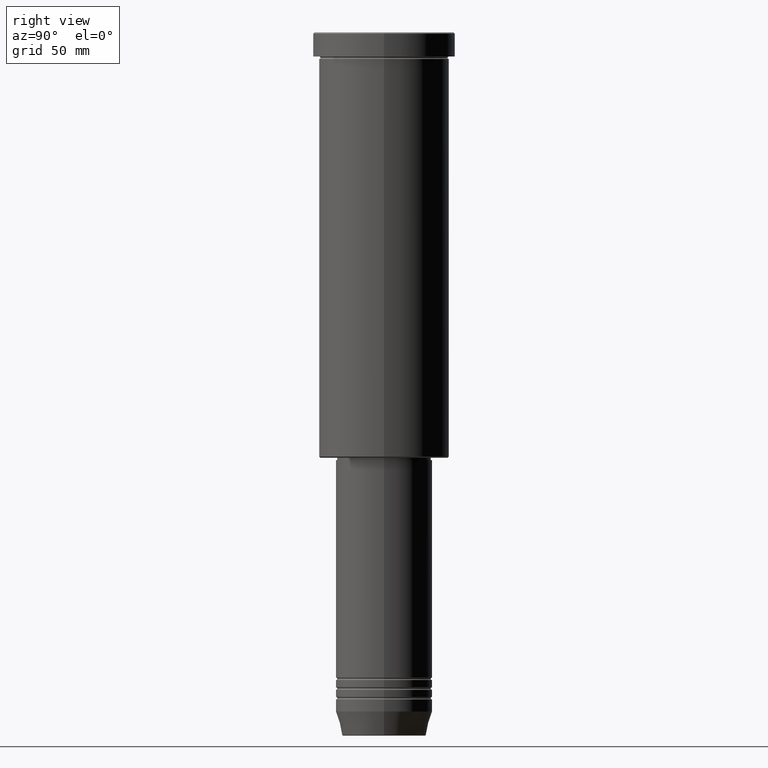
[diagram: clean part render]
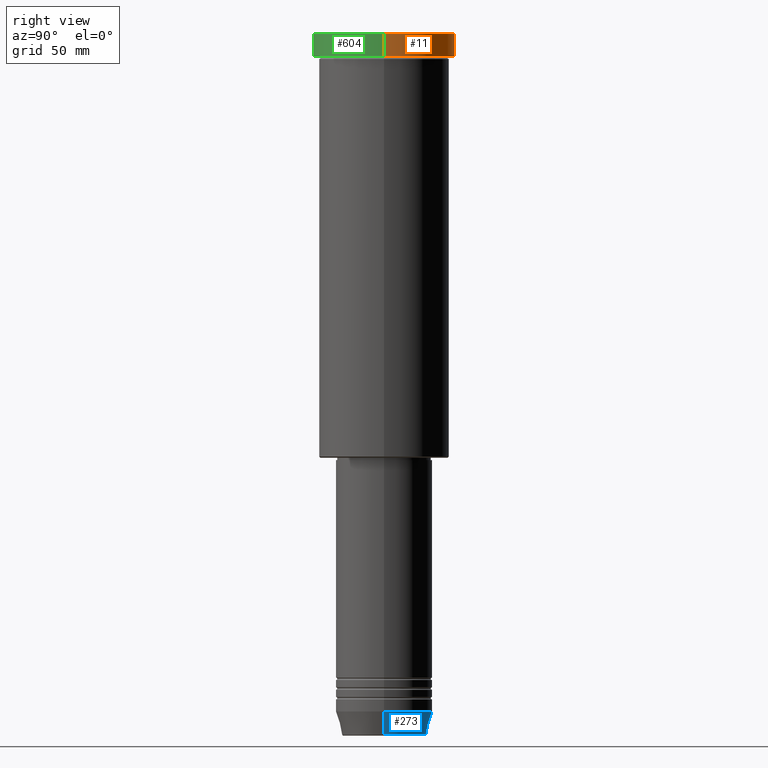
[diagram: same view with three faces highlighted in distinct colors, each labeled with its STEP entity id]
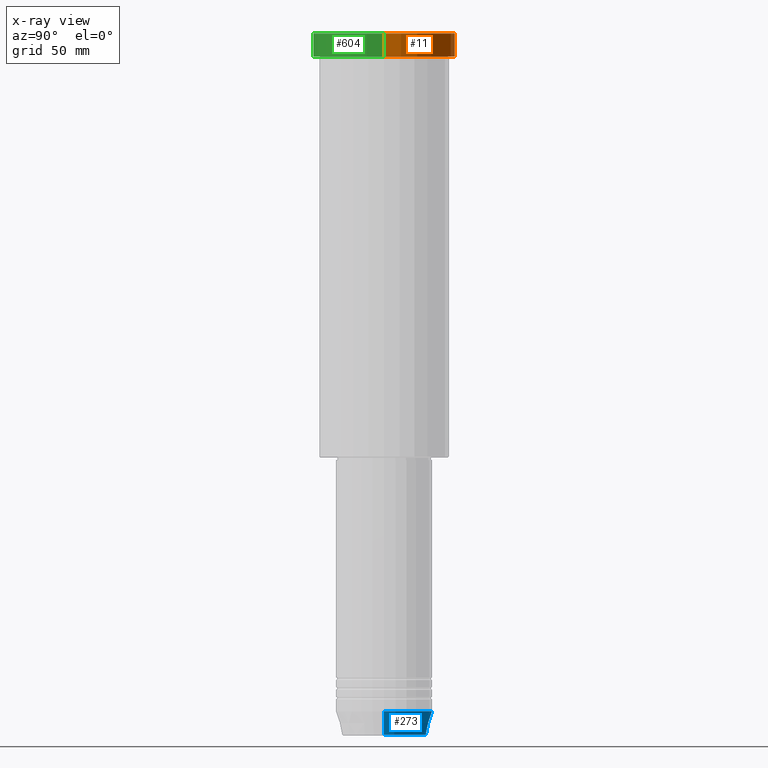
[diagram: x-ray of the same camera — body ghosted, the three highlighted faces saturated]
A machine part, right view with three faces highlighted in distinct colors.
The next image is the same camera in x-ray (body ghosted, the three faces saturated) — at least one of them is partly hidden behind the body in this view.
Their STEP definitions:

[orange] entity #11 — the highlighted cylindrical surface (partial cylindrical patch) has radius 29.5 mm, axis along (-0, -0, 1).
#6 = ORIENTED_EDGE ( 'NONE', *, *, #400, .F. ) ;
#7 = CARTESIAN_POINT ( 'NONE',  ( 0.000000000000000000, 0.000000000000000000, 0.000000000000000000 ) ) ;
#11 = ADVANCED_FACE ( 'NONE', ( #542 ), #909, .T. ) ;
#95 = VERTEX_POINT ( 'NONE', #239 ) ;
#125 = CIRCLE ( 'NONE', #207, 29.50000000000000000 ) ;
#157 = DIRECTION ( 'NONE',  ( -0.000000000000000000, -0.000000000000000000, 1.000000000000000000 ) ) ;
#169 = CIRCLE ( 'NONE', #324, 29.50000000000000000 ) ;
#172 = VERTEX_POINT ( 'NONE', #969 ) ;
#175 = ORIENTED_EDGE ( 'NONE', *, *, #852, .T. ) ;
#195 = CARTESIAN_POINT ( 'NONE',  ( 0.000000000000000000, 0.000000000000000000, -0.4999999999999726885 ) ) ;
#207 = AXIS2_PLACEMENT_3D ( 'NONE', #332, #157, #603 ) ;
#239 = CARTESIAN_POINT ( 'NONE',  ( 29.50000000000000000, 0.000000000000000000, -9.999999999999992895 ) ) ;
#240 = DIRECTION ( 'NONE',  ( -0.000000000000000000, -0.000000000000000000, 1.000000000000000000 ) ) ;
#250 = VECTOR ( 'NONE', #240, 1000.000000000000000 ) ;
#263 = VERTEX_POINT ( 'NONE', #383 ) ;
#309 = EDGE_CURVE ( 'NONE', #95, #914, #125, .T. ) ;
#323 = VECTOR ( 'NONE', #696, 1000.000000000000000 ) ;
#324 = AXIS2_PLACEMENT_3D ( 'NONE', #195, #539, #555 ) ;
#332 = CARTESIAN_POINT ( 'NONE',  ( 0.000000000000000000, 0.000000000000000000, -9.999999999999992895 ) ) ;
#354 = CARTESIAN_POINT ( 'NONE',  ( -29.50000000000000000, 3.612708057484691604E-15, -9.999999999999992895 ) ) ;
#372 = DIRECTION ( 'NONE',  ( -0.000000000000000000, -0.000000000000000000, 1.000000000000000000 ) ) ;
#383 = CARTESIAN_POINT ( 'NONE',  ( 29.50000000000000000, 0.000000000000000000, -0.4999999999999726885 ) ) ;
#400 = EDGE_CURVE ( 'NONE', #95, #263, #680, .T. ) ;
#441 = CARTESIAN_POINT ( 'NONE',  ( -29.50000000000000000, 3.612708057484691604E-15, 0.000000000000000000 ) ) ;
#538 = ORIENTED_EDGE ( 'NONE', *, *, #309, .T. ) ;
#539 = DIRECTION ( 'NONE',  ( 0.000000000000000000, 0.000000000000000000, -1.000000000000000000 ) ) ;
#542 = FACE_OUTER_BOUND ( 'NONE', #833, .T. ) ;
#555 = DIRECTION ( 'NONE',  ( 1.000000000000000000, 0.000000000000000000, 0.000000000000000000 ) ) ;
#578 = AXIS2_PLACEMENT_3D ( 'NONE', #7, #372, #636 ) ;
#587 = CARTESIAN_POINT ( 'NONE',  ( 29.50000000000000000, 0.000000000000000000, 0.000000000000000000 ) ) ;
#603 = DIRECTION ( 'NONE',  ( 1.000000000000000000, 0.000000000000000000, 0.000000000000000000 ) ) ;
#636 = DIRECTION ( 'NONE',  ( 1.000000000000000000, 0.000000000000000000, 0.000000000000000000 ) ) ;
#680 = LINE ( 'NONE', #587, #323 ) ;
#696 = DIRECTION ( 'NONE',  ( -0.000000000000000000, -0.000000000000000000, 1.000000000000000000 ) ) ;
#764 = LINE ( 'NONE', #441, #250 ) ;
#783 = ORIENTED_EDGE ( 'NONE', *, *, #1026, .T. ) ;
#833 = EDGE_LOOP ( 'NONE', ( #538, #175, #783, #6 ) ) ;
#852 = EDGE_CURVE ( 'NONE', #914, #172, #764, .T. ) ;
#909 = CYLINDRICAL_SURFACE ( 'NONE', #578, 29.50000000000000000 ) ;
#914 = VERTEX_POINT ( 'NONE', #354 ) ;
#969 = CARTESIAN_POINT ( 'NONE',  ( -29.50000000000000000, 3.612708057484691604E-15, -0.4999999999999726885 ) ) ;
#1026 = EDGE_CURVE ( 'NONE', #172, #263, #169, .T. ) ;

[blue] entity #273 — the highlighted conical surface has half-angle 15 deg.
#89 = EDGE_CURVE ( 'NONE', #200, #101, #146, .T. ) ;
#101 = VERTEX_POINT ( 'NONE', #471 ) ;
#146 = CIRCLE ( 'NONE', #787, 20.00000000000000000 ) ;
#177 = VERTEX_POINT ( 'NONE', #246 ) ;
#179 = LINE ( 'NONE', #277, #1165 ) ;
#200 = VERTEX_POINT ( 'NONE', #328 ) ;
#208 = AXIS2_PLACEMENT_3D ( 'NONE', #562, #1119, #1127 ) ;
#246 = CARTESIAN_POINT ( 'NONE',  ( 17.41980749484382684, 0.000000000000000000, -290.6294095225512137 ) ) ;
#273 = ADVANCED_FACE ( 'NONE', ( #536 ), #544, .T. ) ;
#277 = CARTESIAN_POINT ( 'NONE',  ( 20.00000000000000000, 0.000000000000000000, -281.0000000000000000 ) ) ;
#305 = LINE ( 'NONE', #677, #872 ) ;
#328 = CARTESIAN_POINT ( 'NONE',  ( 20.00000000000000000, 0.000000000000000000, -281.0000000000000000 ) ) ;
#410 = ORIENTED_EDGE ( 'NONE', *, *, #777, .T. ) ;
#432 = EDGE_CURVE ( 'NONE', #177, #200, #179, .T. ) ;
#433 = DIRECTION ( 'NONE',  ( 0.2588190451025211836, 0.000000000000000000, 0.9659258262890680902 ) ) ;
#457 = CARTESIAN_POINT ( 'NONE',  ( -17.41980749484382684, 2.291302373663531915E-15, -290.6294095225512137 ) ) ;
#471 = CARTESIAN_POINT ( 'NONE',  ( -20.00000000000000000, 2.449293598294706513E-15, -281.0000000000000000 ) ) ;
#521 = ORIENTED_EDGE ( 'NONE', *, *, #432, .F. ) ;
#536 = FACE_OUTER_BOUND ( 'NONE', #561, .T. ) ;
#544 = CONICAL_SURFACE ( 'NONE', #657, 20.00000000000000000, 0.2617993877991499074 ) ;
#561 = EDGE_LOOP ( 'NONE', ( #692, #410, #880, #521 ) ) ;
#562 = CARTESIAN_POINT ( 'NONE',  ( 0.000000000000000000, 0.000000000000000000, -290.6294095225512137 ) ) ;
#572 = CARTESIAN_POINT ( 'NONE',  ( 0.000000000000000000, 0.000000000000000000, -281.0000000000000000 ) ) ;
#576 = DIRECTION ( 'NONE',  ( -0.000000000000000000, -0.000000000000000000, 1.000000000000000000 ) ) ;
#619 = CIRCLE ( 'NONE', #208, 17.41980749484382684 ) ;
#628 = CARTESIAN_POINT ( 'NONE',  ( 0.000000000000000000, 0.000000000000000000, -281.0000000000000000 ) ) ;
#657 = AXIS2_PLACEMENT_3D ( 'NONE', #628, #671, #1025 ) ;
#671 = DIRECTION ( 'NONE',  ( -0.000000000000000000, -0.000000000000000000, 1.000000000000000000 ) ) ;
#677 = CARTESIAN_POINT ( 'NONE',  ( -20.00000000000000000, 2.449293598294706513E-15, -281.0000000000000000 ) ) ;
#689 = DIRECTION ( 'NONE',  ( -0.2588190451025211836, 3.169619151431770488E-17, 0.9659258262890680902 ) ) ;
#692 = ORIENTED_EDGE ( 'NONE', *, *, #761, .T. ) ;
#761 = EDGE_CURVE ( 'NONE', #177, #1023, #619, .T. ) ;
#777 = EDGE_CURVE ( 'NONE', #1023, #101, #305, .T. ) ;
#787 = AXIS2_PLACEMENT_3D ( 'NONE', #572, #576, #1130 ) ;
#872 = VECTOR ( 'NONE', #689, 1000.000000000000114 ) ;
#880 = ORIENTED_EDGE ( 'NONE', *, *, #89, .F. ) ;
#1023 = VERTEX_POINT ( 'NONE', #457 ) ;
#1025 = DIRECTION ( 'NONE',  ( 1.000000000000000000, 0.000000000000000000, 0.000000000000000000 ) ) ;
#1119 = DIRECTION ( 'NONE',  ( -0.000000000000000000, -0.000000000000000000, 1.000000000000000000 ) ) ;
#1127 = DIRECTION ( 'NONE',  ( 1.000000000000000000, 0.000000000000000000, 0.000000000000000000 ) ) ;
#1130 = DIRECTION ( 'NONE',  ( 1.000000000000000000, 0.000000000000000000, 0.000000000000000000 ) ) ;
#1165 = VECTOR ( 'NONE', #433, 1000.000000000000114 ) ;

[green] entity #604 — the highlighted cylindrical surface (partial cylindrical patch) has radius 29.5 mm, axis along (-0, -0, 1).
#80 = FACE_OUTER_BOUND ( 'NONE', #406, .T. ) ;
#85 = DIRECTION ( 'NONE',  ( 1.000000000000000000, 0.000000000000000000, 0.000000000000000000 ) ) ;
#95 = VERTEX_POINT ( 'NONE', #239 ) ;
#129 = CIRCLE ( 'NONE', #679, 29.50000000000000000 ) ;
#161 = ORIENTED_EDGE ( 'NONE', *, *, #944, .T. ) ;
#172 = VERTEX_POINT ( 'NONE', #969 ) ;
#174 = CARTESIAN_POINT ( 'NONE',  ( 0.000000000000000000, 0.000000000000000000, 0.000000000000000000 ) ) ;
#239 = CARTESIAN_POINT ( 'NONE',  ( 29.50000000000000000, 0.000000000000000000, -9.999999999999992895 ) ) ;
#240 = DIRECTION ( 'NONE',  ( -0.000000000000000000, -0.000000000000000000, 1.000000000000000000 ) ) ;
#250 = VECTOR ( 'NONE', #240, 1000.000000000000000 ) ;
#253 = ORIENTED_EDGE ( 'NONE', *, *, #400, .T. ) ;
#263 = VERTEX_POINT ( 'NONE', #383 ) ;
#281 = CARTESIAN_POINT ( 'NONE',  ( 0.000000000000000000, 0.000000000000000000, -0.4999999999999726885 ) ) ;
#323 = VECTOR ( 'NONE', #696, 1000.000000000000000 ) ;
#354 = CARTESIAN_POINT ( 'NONE',  ( -29.50000000000000000, 3.612708057484691604E-15, -9.999999999999992895 ) ) ;
#381 = CIRCLE ( 'NONE', #793, 29.50000000000000000 ) ;
#383 = CARTESIAN_POINT ( 'NONE',  ( 29.50000000000000000, 0.000000000000000000, -0.4999999999999726885 ) ) ;
#400 = EDGE_CURVE ( 'NONE', #95, #263, #680, .T. ) ;
#406 = EDGE_LOOP ( 'NONE', ( #823, #161, #253, #1161 ) ) ;
#412 = DIRECTION ( 'NONE',  ( -0.000000000000000000, -0.000000000000000000, 1.000000000000000000 ) ) ;
#441 = CARTESIAN_POINT ( 'NONE',  ( -29.50000000000000000, 3.612708057484691604E-15, 0.000000000000000000 ) ) ;
#534 = DIRECTION ( 'NONE',  ( -0.000000000000000000, -0.000000000000000000, 1.000000000000000000 ) ) ;
#537 = EDGE_CURVE ( 'NONE', #263, #172, #129, .T. ) ;
#579 = DIRECTION ( 'NONE',  ( 1.000000000000000000, 0.000000000000000000, 0.000000000000000000 ) ) ;
#587 = CARTESIAN_POINT ( 'NONE',  ( 29.50000000000000000, 0.000000000000000000, 0.000000000000000000 ) ) ;
#604 = ADVANCED_FACE ( 'NONE', ( #80 ), #989, .T. ) ;
#679 = AXIS2_PLACEMENT_3D ( 'NONE', #281, #1078, #85 ) ;
#680 = LINE ( 'NONE', #587, #323 ) ;
#696 = DIRECTION ( 'NONE',  ( -0.000000000000000000, -0.000000000000000000, 1.000000000000000000 ) ) ;
#764 = LINE ( 'NONE', #441, #250 ) ;
#793 = AXIS2_PLACEMENT_3D ( 'NONE', #800, #412, #1172 ) ;
#800 = CARTESIAN_POINT ( 'NONE',  ( 0.000000000000000000, 0.000000000000000000, -9.999999999999992895 ) ) ;
#823 = ORIENTED_EDGE ( 'NONE', *, *, #852, .F. ) ;
#852 = EDGE_CURVE ( 'NONE', #914, #172, #764, .T. ) ;
#914 = VERTEX_POINT ( 'NONE', #354 ) ;
#944 = EDGE_CURVE ( 'NONE', #914, #95, #381, .T. ) ;
#969 = CARTESIAN_POINT ( 'NONE',  ( -29.50000000000000000, 3.612708057484691604E-15, -0.4999999999999726885 ) ) ;
#989 = CYLINDRICAL_SURFACE ( 'NONE', #1182, 29.50000000000000000 ) ;
#1078 = DIRECTION ( 'NONE',  ( 0.000000000000000000, 0.000000000000000000, -1.000000000000000000 ) ) ;
#1161 = ORIENTED_EDGE ( 'NONE', *, *, #537, .T. ) ;
#1172 = DIRECTION ( 'NONE',  ( 1.000000000000000000, 0.000000000000000000, 0.000000000000000000 ) ) ;
#1182 = AXIS2_PLACEMENT_3D ( 'NONE', #174, #534, #579 ) ;